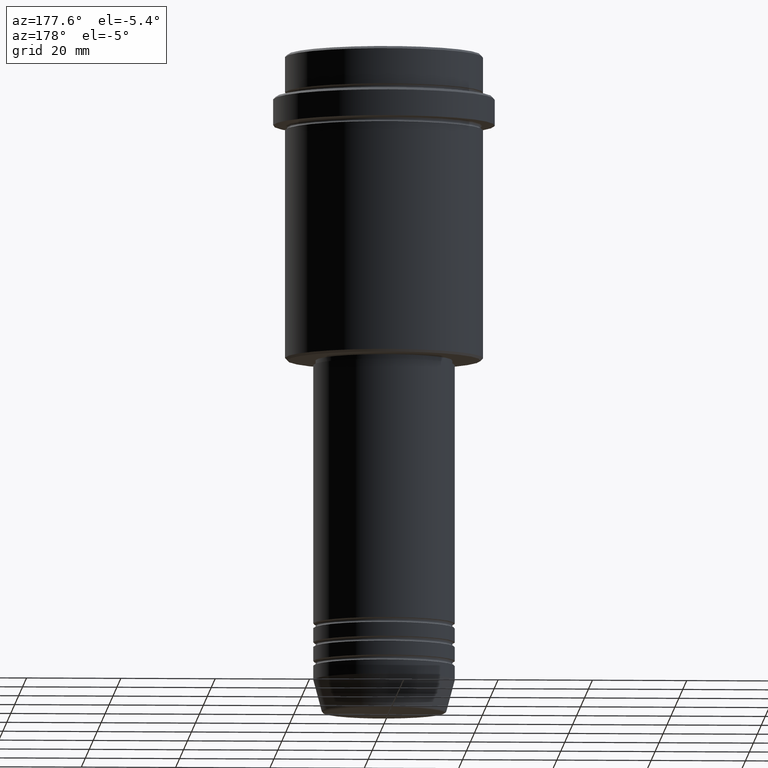
[diagram: clean part render]
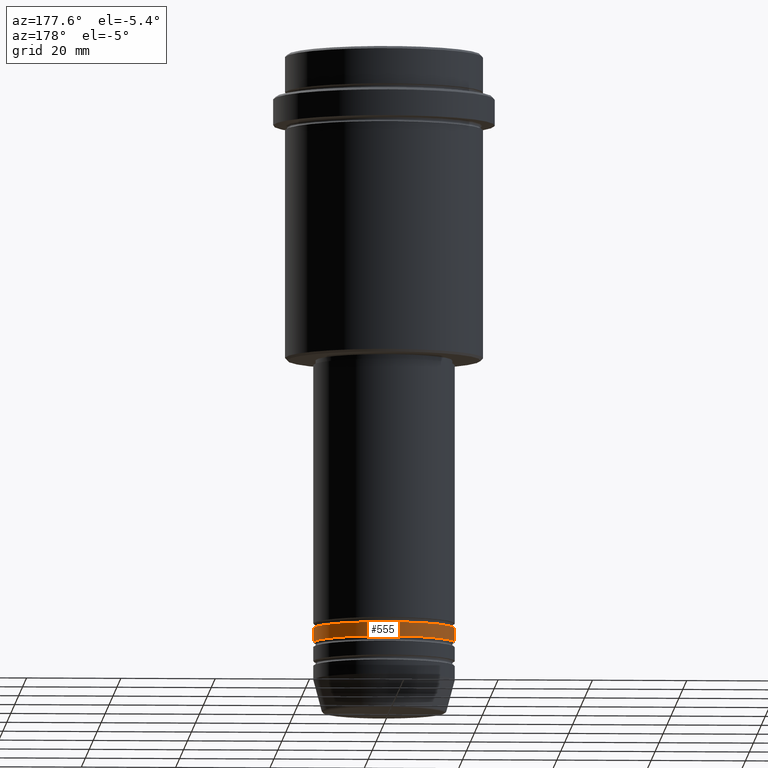
[diagram: same view with one face highlighted and labeled with its STEP entity id]
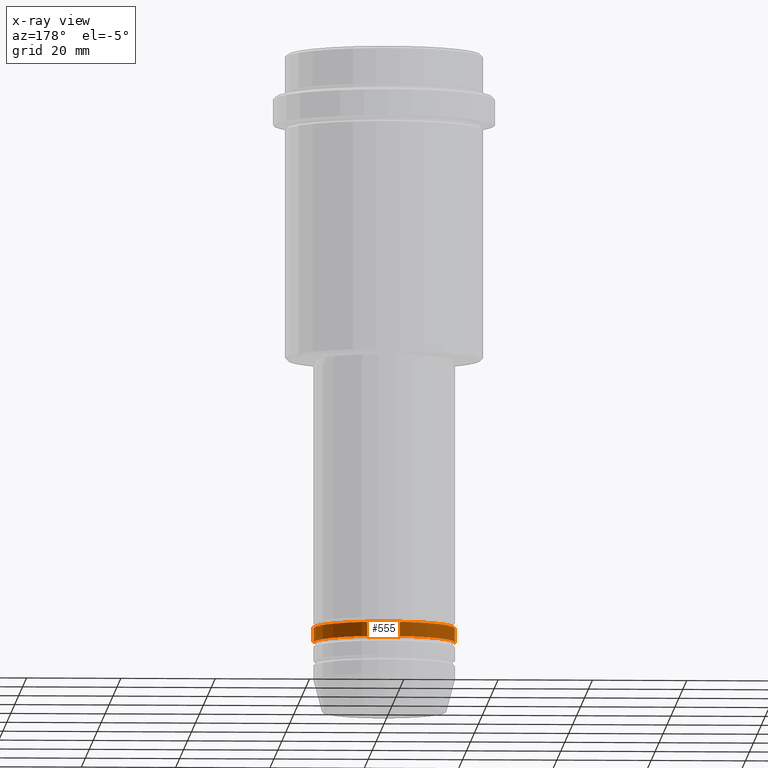
[diagram: x-ray of the same camera — body ghosted, the highlighted face saturated]
A machine part, auxiliary view. The second image highlights one B-rep face of the part: STEP entity #555.
The next image is the same camera in x-ray: the body ghosted, the highlighted face saturated — about 0% of this face is hidden behind the body in this view.
In plain terms, the highlighted cylindrical surface (partial cylindrical patch) has radius 15 mm, axis along (-0, -0, 1).
Its self-contained STEP definition (entity closure, byte-faithful):
#91 = EDGE_CURVE ( 'NONE', #132, #229, #362, .T. ) ;
#129 = VECTOR ( 'NONE', #1125, 1000.000000000000000 ) ;
#132 = VERTEX_POINT ( 'NONE', #871 ) ;
#173 = AXIS2_PLACEMENT_3D ( 'NONE', #234, #1346, #799 ) ;
#208 = CARTESIAN_POINT ( 'NONE',  ( -15.00000000000000000, 1.836970198721029589E-15, -121.9999999999999005 ) ) ;
#229 = VERTEX_POINT ( 'NONE', #230 ) ;
#230 = CARTESIAN_POINT ( 'NONE',  ( -15.00000000000000000, 1.836970198721029589E-15, -124.9999999999999005 ) ) ;
#234 = CARTESIAN_POINT ( 'NONE',  ( 0.000000000000000000, 0.000000000000000000, -124.9999999999999005 ) ) ;
#243 = CARTESIAN_POINT ( 'NONE',  ( 15.00000000000000000, 0.000000000000000000, -121.9999999999999005 ) ) ;
#297 = CYLINDRICAL_SURFACE ( 'NONE', #663, 15.00000000000000000 ) ;
#362 = CIRCLE ( 'NONE', #173, 15.00000000000000000 ) ;
#396 = CARTESIAN_POINT ( 'NONE',  ( -15.00000000000000000, 1.836970198721029589E-15, 0.000000000000000000 ) ) ;
#413 = ORIENTED_EDGE ( 'NONE', *, *, #91, .T. ) ;
#472 = EDGE_LOOP ( 'NONE', ( #413, #1382, #815, #1169 ) ) ;
#485 = EDGE_CURVE ( 'NONE', #229, #1388, #860, .T. ) ;
#510 = DIRECTION ( 'NONE',  ( -0.000000000000000000, -0.000000000000000000, 1.000000000000000000 ) ) ;
#555 = ADVANCED_FACE ( 'NONE', ( #835 ), #297, .T. ) ;
#598 = DIRECTION ( 'NONE',  ( -0.000000000000000000, -0.000000000000000000, 1.000000000000000000 ) ) ;
#618 = CARTESIAN_POINT ( 'NONE',  ( 0.000000000000000000, 0.000000000000000000, 0.000000000000000000 ) ) ;
#619 = VECTOR ( 'NONE', #1178, 1000.000000000000000 ) ;
#654 = VERTEX_POINT ( 'NONE', #243 ) ;
#663 = AXIS2_PLACEMENT_3D ( 'NONE', #618, #510, #957 ) ;
#677 = CARTESIAN_POINT ( 'NONE',  ( 15.00000000000000000, 0.000000000000000000, 0.000000000000000000 ) ) ;
#688 = LINE ( 'NONE', #677, #129 ) ;
#764 = EDGE_CURVE ( 'NONE', #132, #654, #688, .T. ) ;
#783 = EDGE_CURVE ( 'NONE', #654, #1388, #1238, .T. ) ;
#799 = DIRECTION ( 'NONE',  ( 1.000000000000000000, 0.000000000000000000, 0.000000000000000000 ) ) ;
#815 = ORIENTED_EDGE ( 'NONE', *, *, #783, .F. ) ;
#835 = FACE_OUTER_BOUND ( 'NONE', #472, .T. ) ;
#860 = LINE ( 'NONE', #396, #619 ) ;
#871 = CARTESIAN_POINT ( 'NONE',  ( 15.00000000000000000, 0.000000000000000000, -124.9999999999999005 ) ) ;
#929 = CARTESIAN_POINT ( 'NONE',  ( 0.000000000000000000, 0.000000000000000000, -121.9999999999999005 ) ) ;
#957 = DIRECTION ( 'NONE',  ( 1.000000000000000000, 0.000000000000000000, 0.000000000000000000 ) ) ;
#1125 = DIRECTION ( 'NONE',  ( -0.000000000000000000, -0.000000000000000000, 1.000000000000000000 ) ) ;
#1169 = ORIENTED_EDGE ( 'NONE', *, *, #764, .F. ) ;
#1178 = DIRECTION ( 'NONE',  ( -0.000000000000000000, -0.000000000000000000, 1.000000000000000000 ) ) ;
#1238 = CIRCLE ( 'NONE', #1330, 15.00000000000000000 ) ;
#1330 = AXIS2_PLACEMENT_3D ( 'NONE', #929, #598, #1343 ) ;
#1343 = DIRECTION ( 'NONE',  ( 1.000000000000000000, 0.000000000000000000, 0.000000000000000000 ) ) ;
#1346 = DIRECTION ( 'NONE',  ( -0.000000000000000000, -0.000000000000000000, 1.000000000000000000 ) ) ;
#1382 = ORIENTED_EDGE ( 'NONE', *, *, #485, .T. ) ;
#1388 = VERTEX_POINT ( 'NONE', #208 ) ;